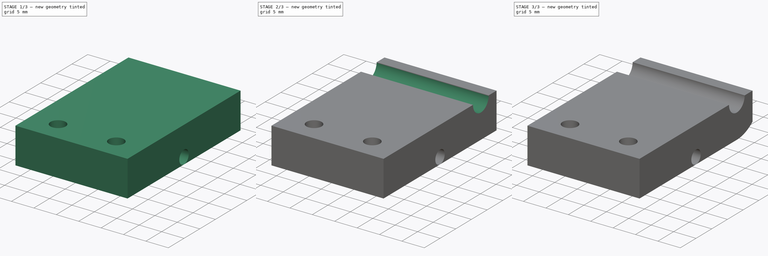
[diagram: build sequence overview — one tinted view per stage of 3, left to right]
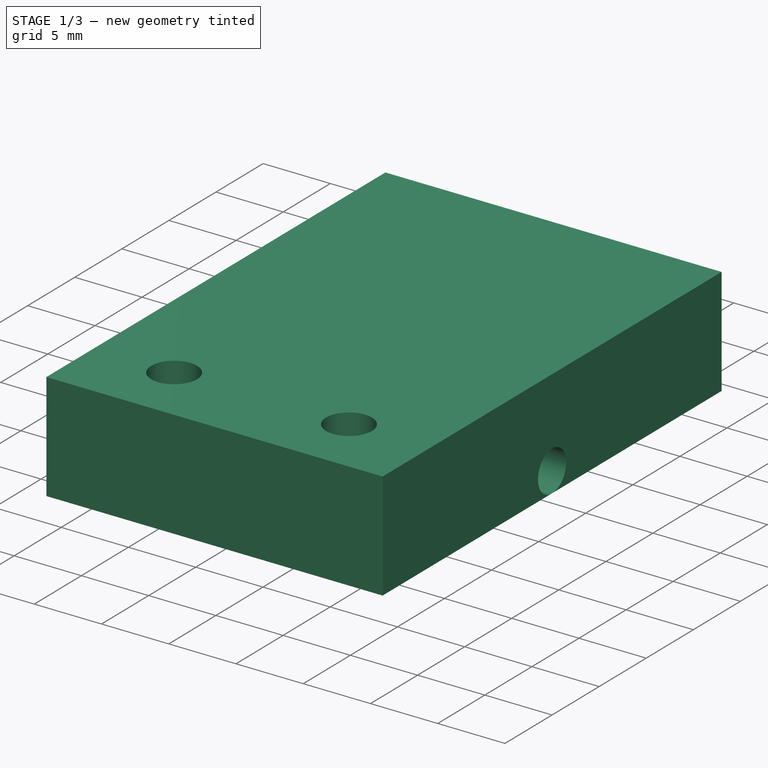
[diagram: stage 1 of 3 — iso view after this stage's code; geometry added in this stage tinted green]
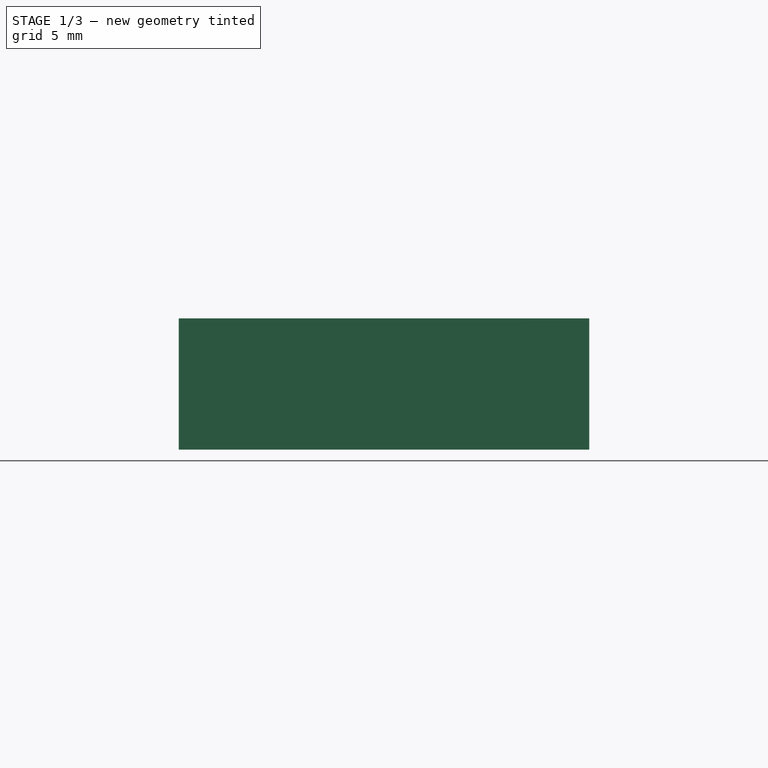
[diagram: stage 1 of 3 — front view after this stage's code; geometry added in this stage tinted green]
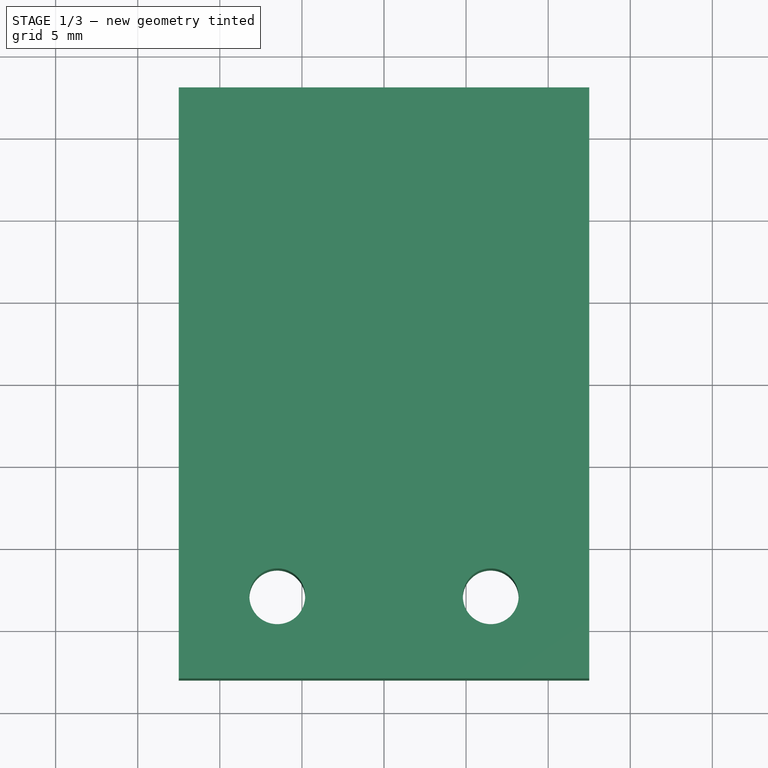
[diagram: stage 1 of 3 — top view after this stage's code; geometry added in this stage tinted green]
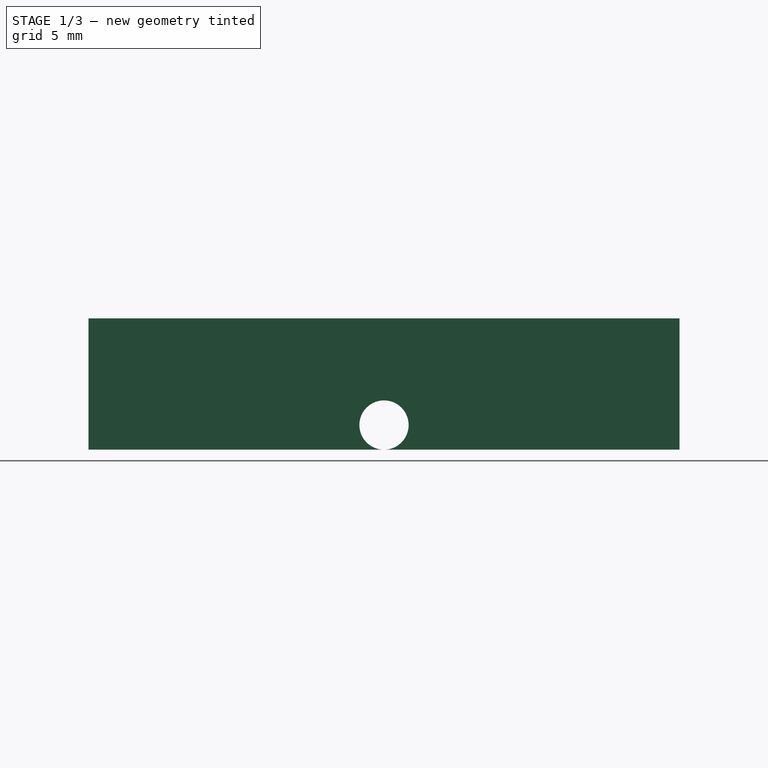
[diagram: stage 1 of 3 — right view after this stage's code; geometry added in this stage tinted green]
FCSTD DOCUMENT  (FreeCAD 0.18R13661 (Git))
Label: Idler_623zz+M3
License: All rights reserved
LicenseURL: http://en.wikipedia.org/wiki/All_rights_reserved
objects: Sketcher::SketchObject×6, PartDesign::Pocket×5, PartDesign::Plane×2, PartDesign::Chamfer×2, PartDesign::Pad×1, PartDesign::Body×1
note: 23 computed .brp shape members not serialized (recipe doc carries the construction recipe); baked Part::Feature solids carry a one-line shape summary decoded from their .brp

FEATURE [Sketcher::SketchObject] Sketch  label="BaseSketch"
  MapMode = 5
  Support = -> [XY_Plane]
  sketch-geometry (12):
    g0: Circle [constr] CenterX=0 CenterY=0 CenterZ=0 NormalX=0 NormalY=0 NormalZ=1 AngleXU=0 Radius=21.9146
    g1: LineSegment StartX=-12.5 StartY=18 StartZ=0 EndX=-12.5 EndY=0 EndZ=0
    g2: LineSegment StartX=-12.5 StartY=0 StartZ=0 EndX=-12.5 EndY=-18 EndZ=0
    g3: LineSegment StartX=12.5 StartY=-18 StartZ=0 EndX=12.5 EndY=0 EndZ=0
    g4: LineSegment StartX=12.5 StartY=0 StartZ=0 EndX=12.5 EndY=18 EndZ=0
    g5: LineSegment StartX=-12.5 StartY=18 StartZ=0 EndX=0 EndY=18 EndZ=0
    g6: LineSegment StartX=0 StartY=18 StartZ=0 EndX=12.5 EndY=18 EndZ=0
    g7: LineSegment StartX=12.5 StartY=-18 StartZ=0 EndX=0 EndY=-18 EndZ=0
    g8: LineSegment StartX=0 StartY=-18 StartZ=0 EndX=-12.5 EndY=-18 EndZ=0
    g9: Circle [constr] CenterX=0 CenterY=0 CenterZ=0 NormalX=0 NormalY=0 NormalZ=1 AngleXU=0 Radius=14.5344
    g10: Circle CenterX=6.5 CenterY=-13 CenterZ=0 NormalX=0 NormalY=0 NormalZ=1 AngleXU=0 Radius=1.7
    g11: Circle CenterX=-6.5 CenterY=-13 CenterZ=0 NormalX=0 NormalY=0 NormalZ=1 AngleXU=0 Radius=1.7
  constraints (34):
    c: Coincident(g0,g-1)
    c: PointOnObject(g1,g0)
    c: PointOnObject(g1,g-1)
    c: Coincident(g2,g1)
    c: PointOnObject(g2,g0)
    c: PointOnObject(g3,g0)
    c: PointOnObject(g3,g-1)
    c: Coincident(g4,g3)
    c: PointOnObject(g4,g0)
    c: Coincident(g5,g1)
    c: PointOnObject(g5,g-2)
    c: Coincident(g6,g5)
    c: Coincident(g6,g4)
    c: Coincident(g7,g3)
    c: PointOnObject(g7,g-2)
    c: Coincident(g8,g7)
    c: Coincident(g8,g2)
    c: Vertical(g1)
    c: Vertical(g2)
    c: Horizontal(g5)
    c: Horizontal(g6)
    c: Vertical(g4)
    c: Vertical(g3)
    c: Horizontal(g7)
    c: Distance(g1,g2) = 36
    c: Distance(g1,g4) = 25
    c: Coincident(g9,g-1)
    c: PointOnObject(g10,g9)
    c: PointOnObject(g11,g9)
    c: Equal(g10,g11)
    c: Symmetric(g10,g11,g-2)
    c: DistanceY(g3,g10) = 5
    c: DistanceX(g10,g3) = 6
    c: Radius(g10) = 1.7
FEATURE [PartDesign::Pad] Pad  label="BasePad"
  Length = 8
  Length2 = 100
  Profile = -> Sketch
  Type = 0
FEATURE [Sketcher::SketchObject] Sketch001  label="BearingClampSketch"
  MapMode = 5
  Placement = pos=(0,0,0) rot=(0.57735,0.57735,0.57735;2.0944rad)
  Support = -> [YZ_Plane]
  sketch-geometry (1):
    g0: Circle CenterX=0 CenterY=1.5 CenterZ=0 NormalX=0 NormalY=0 NormalZ=1 AngleXU=0 Radius=1.5
  constraints (3):
    c: PointOnObject(g0,g-2)
    c: Distance(g-1,g0) = 1.5
    c: Radius(g0) = 1.5
FEATURE [PartDesign::Pocket] Pocket  label="BearingClampPocket"
  BaseFeature = -> Pad
  Length = 5
  Length2 = 100
  Midplane = true
  Profile = -> Sketch001
  Type = 1
FEATURE [Sketcher::SketchObject] Sketch002  label="BearingNotchSketch"
  ExternalGeometry = -> [Sketch001]
  MapMode = 5
  Placement = pos=(0,0,0) rot=(0.57735,0.57735,0.57735;2.0944rad)
  Support = -> [YZ_Plane]
  sketch-geometry (1):
    g0: Circle CenterX=0 CenterY=1.5 CenterZ=0 NormalX=0 NormalY=0 NormalZ=1 AngleXU=0 Radius=3
  constraints (2):
    c: Coincident(g0,g-3)
    c: Radius(g0) = 3
FEATURE [PartDesign::Pocket] Pocket001  label="BearingNotchPocket"
  BaseFeature = -> Pocket
  Length = 4.5
  Length2 = 100
  Midplane = true
  Profile = -> Sketch002
  Type = 0
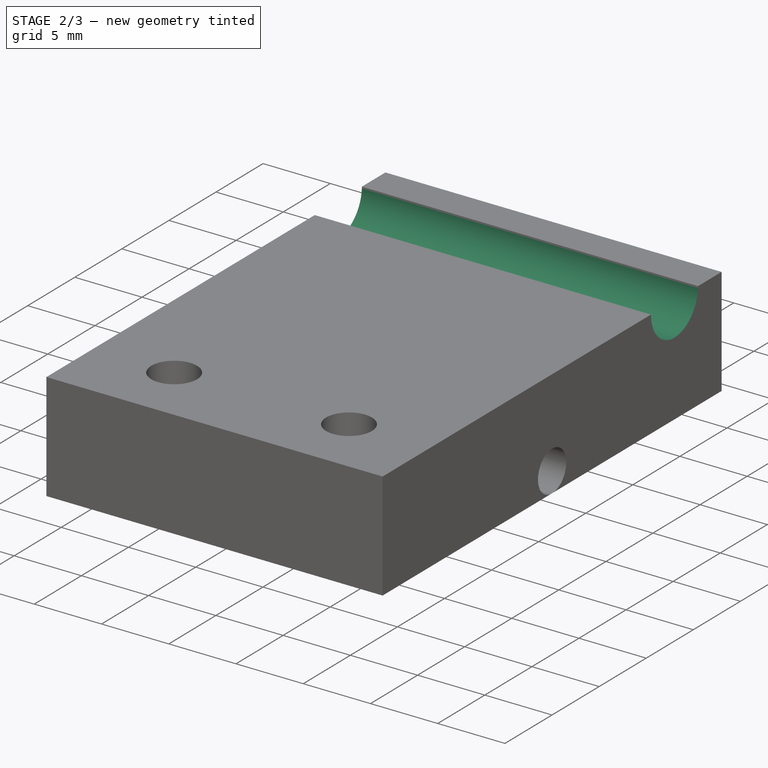
[diagram: stage 2 of 3 — iso view after this stage's code; geometry added in this stage tinted green]
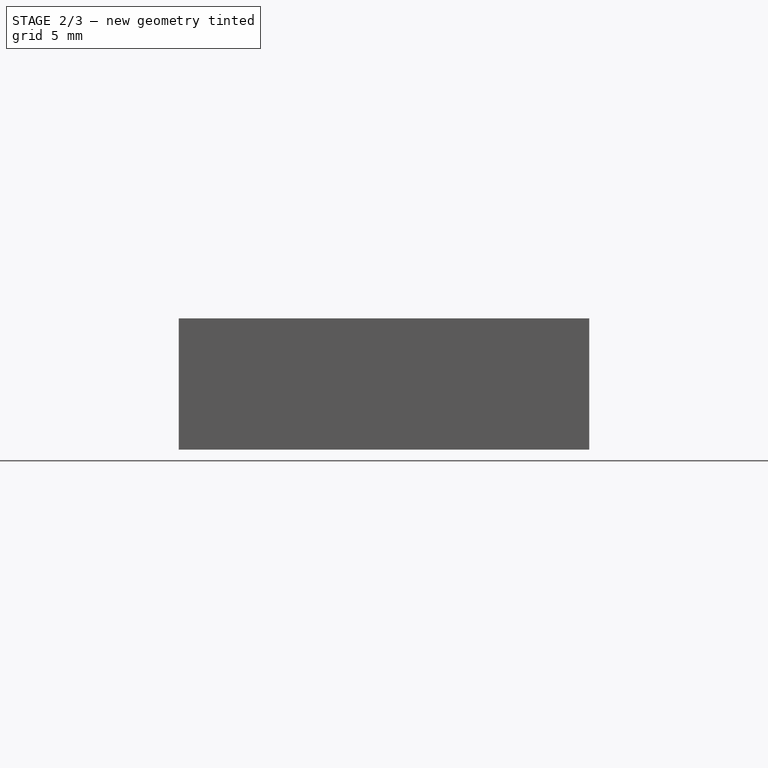
[diagram: stage 2 of 3 — front view after this stage's code; geometry added in this stage tinted green]
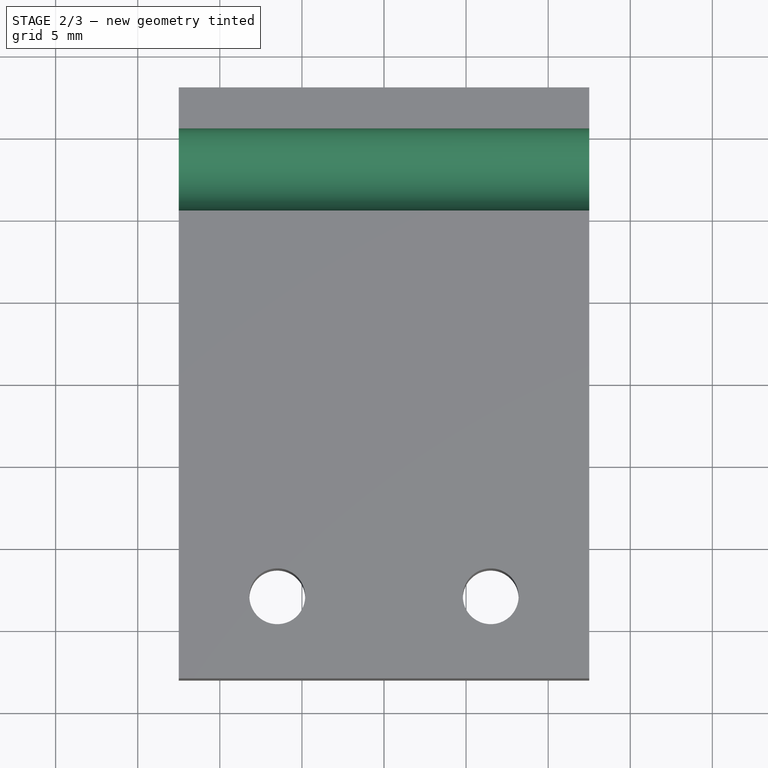
[diagram: stage 2 of 3 — top view after this stage's code; geometry added in this stage tinted green]
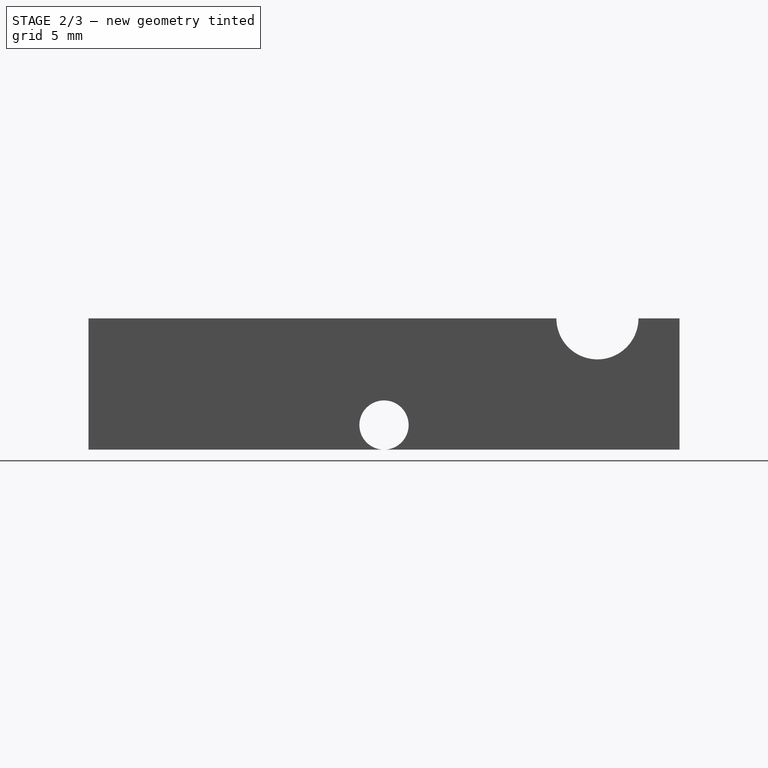
[diagram: stage 2 of 3 — right view after this stage's code; geometry added in this stage tinted green]
FEATURE [Sketcher::SketchObject] Sketch003  label="BearingCutSketch"
  ExternalGeometry = -> [Sketch001]
  MapMode = 5
  Placement = pos=(0,0,0) rot=(0.57735,0.57735,0.57735;2.0944rad)
  Support = -> [YZ_Plane]
  sketch-geometry (2):
    g0: Circle CenterX=0 CenterY=1.5 CenterZ=0 NormalX=0 NormalY=0 NormalZ=1 AngleXU=0 Radius=3
    g1: Circle CenterX=0 CenterY=1.5 CenterZ=0 NormalX=0 NormalY=0 NormalZ=1 AngleXU=0 Radius=6
  constraints (4):
    c: Coincident(g0,g-3)
    c: Radius(g0) = 3
    c: Coincident(g1,g0)
    c: Radius(g1) = 6
FEATURE [PartDesign::Pocket] Pocket002  label="BearingCutPocket"
  BaseFeature = -> Pocket001
  Length = 8
  Length2 = 100
  Midplane = true
  Profile = -> Sketch003
  Type = 0
FEATURE [PartDesign::Plane] DatumPlane  label="IdlerClampPlane"
  AttachmentOffset = pos=(5,0,0) rot=(0,0,1;0rad)
  MapMode = 6
  Placement = pos=(-12.5,13,8) rot=(0.57735,-0.57735,-0.57735;2.0944rad)
  Support = -> [Pad]
FEATURE [Sketcher::SketchObject] Sketch004  label="IdlerClampSketch"
  MapMode = 5
  Placement = pos=(-12.5,13,8) rot=(0.57735,-0.57735,-0.57735;2.0944rad)
  Support = -> [DatumPlane]
  sketch-geometry (1):
    g0: Circle CenterX=0 CenterY=0 CenterZ=0 NormalX=0 NormalY=0 NormalZ=1 AngleXU=0 Radius=2.5
  constraints (2):
    c: Coincident(g0,g-1)
    c: Radius(g0) = 2.5
FEATURE [PartDesign::Pocket] Pocket003  label="IdlerClampPocket"
  BaseFeature = -> Pocket002
  Length = 5
  Length2 = 100
  Profile = -> Sketch004
  Type = 1
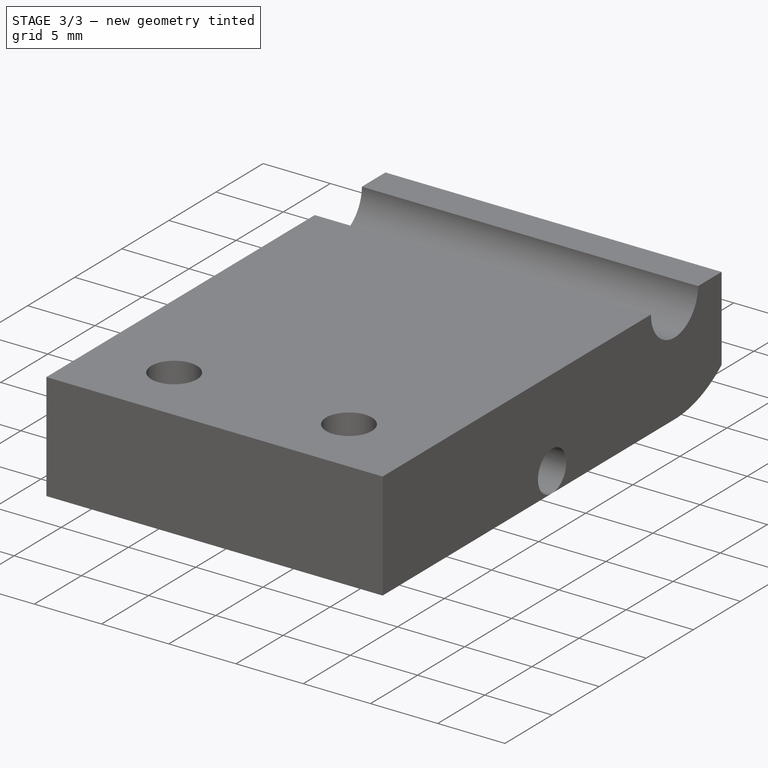
[diagram: stage 3 of 3 — iso view after this stage's code; geometry added in this stage tinted green]
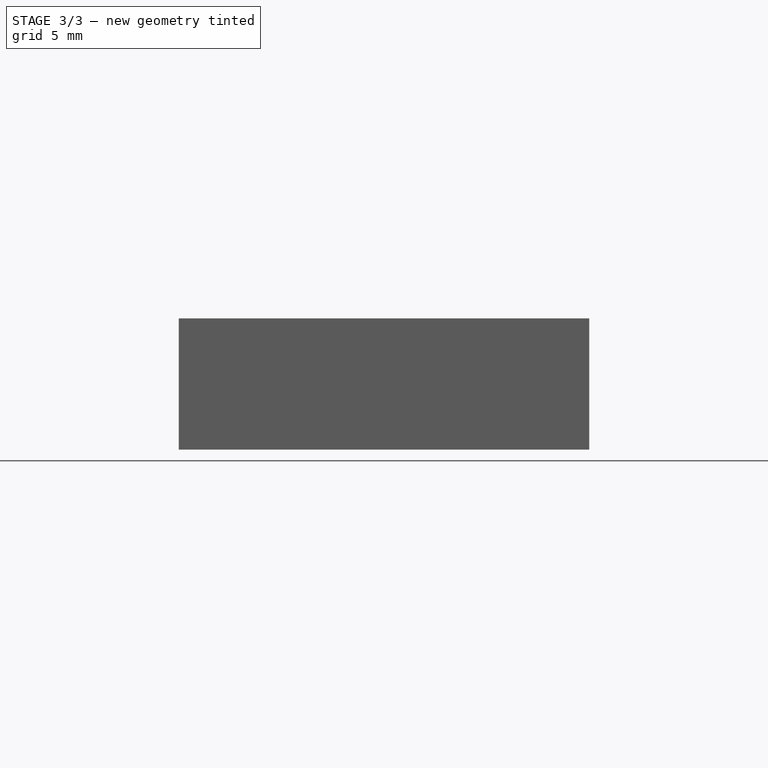
[diagram: stage 3 of 3 — front view after this stage's code; geometry added in this stage tinted green]
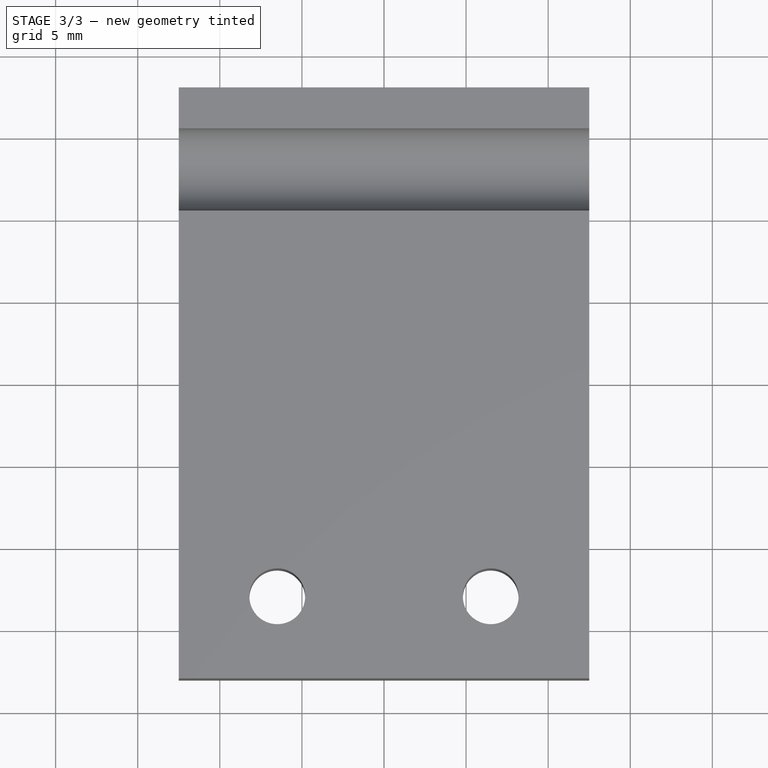
[diagram: stage 3 of 3 — top view after this stage's code; geometry added in this stage tinted green]
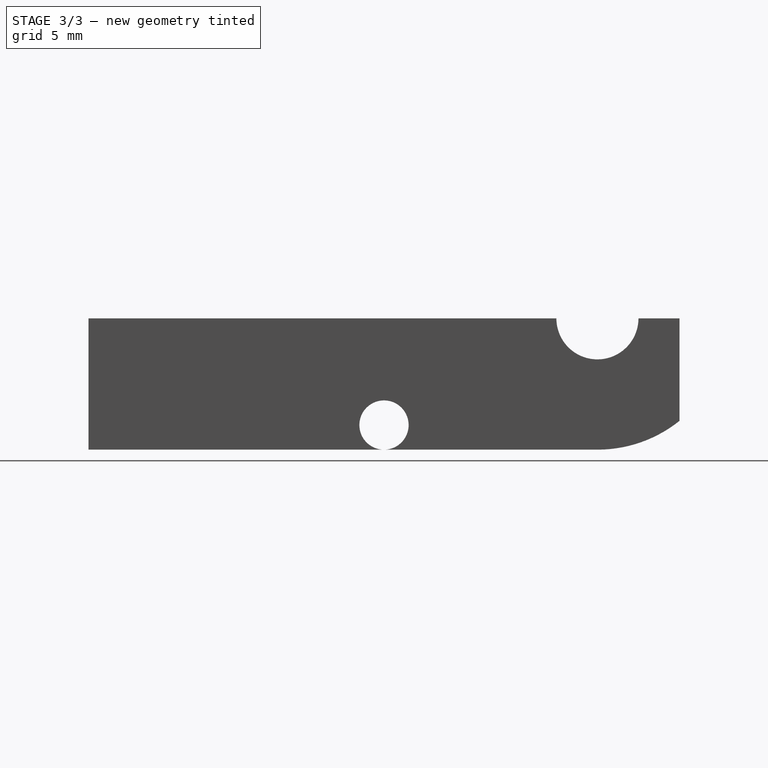
[diagram: stage 3 of 3 — right view after this stage's code; geometry added in this stage tinted green]
FEATURE [PartDesign::Plane] DatumPlane001  label="IdlerChamferPlane"
  AttachmentOffset = pos=(5,0,0) rot=(0,0,1;0rad)
  MapMode = 6
  Placement = pos=(-12.5,13,0) rot=(0.57735,-0.57735,-0.57735;2.0944rad)
  Support = -> [Pocket003]
FEATURE [Sketcher::SketchObject] Sketch005  label="IdlerChamferSketch"
  ExternalGeometry = -> [Sketch004]
  MapMode = 5
  Placement = pos=(-12.5,13,0) rot=(0.57735,-0.57735,-0.57735;2.0944rad)
  Support = -> [DatumPlane001]
  sketch-geometry (4):
    g0: ArcOfCircle CenterX=0 CenterY=8 CenterZ=0 NormalX=0 NormalY=0 NormalZ=1 AngleXU=0 Radius=8 StartAngle=3.14159 EndAngle=4.71239
    g1: LineSegment StartX=0 StartY=0 StartZ=0 EndX=4.209e-08 EndY=-10 EndZ=0
    g2: LineSegment StartX=-8 StartY=8 StartZ=0 EndX=-18 EndY=8 EndZ=0
    g3: ArcOfCircle CenterX=0 CenterY=8 CenterZ=0 NormalX=0 NormalY=0 NormalZ=1 AngleXU=0 Radius=18 StartAngle=3.14159 EndAngle=4.71239
  constraints (11):
    c: Coincident(g0,g-3)
    c: Coincident(g0,g-1)
    c: Angle(g0) = 1.5708
    c: Coincident(g1,g-1)
    c: Distance(g1) = 10
    c: Coincident(g2,g0)
    c: Horizontal(g2)
    c: Distance(g2) = 10
    c: Coincident(g3,g0)
    c: Coincident(g3,g1)
    c: Coincident(g3,g2)
FEATURE [PartDesign::Pocket] Pocket004  label="IdlerChamferPocket"
  BaseFeature = -> Pocket003
  Length = 5
  Length2 = 100
  Profile = -> Sketch005
  Type = 1
FEATURE [PartDesign::Chamfer] Chamfer  label="BearingNotchChamfer"
  Base = -> Pocket004 [Edge62,Edge56]
  BaseFeature = -> Pocket004
  Size = 1
FEATURE [PartDesign::Chamfer] Chamfer001  label="BearingCutChamfer"
  Base = -> Chamfer [Edge6,Edge36]
  BaseFeature = -> Chamfer
  Size = 1.5
FEATURE [PartDesign::Body] Body  label="IdlerBody"
  Group = -> [Sketch,Pad,Sketch001,Pocket,Sketch002,Pocket001,Sketch003,Pocket002,Sketch004,Pocket003,DatumPlane,DatumPlane001,Sketch005,Pocket004,Chamfer,Chamfer001]
  Origin = -> Origin
  Tip = -> Chamfer001
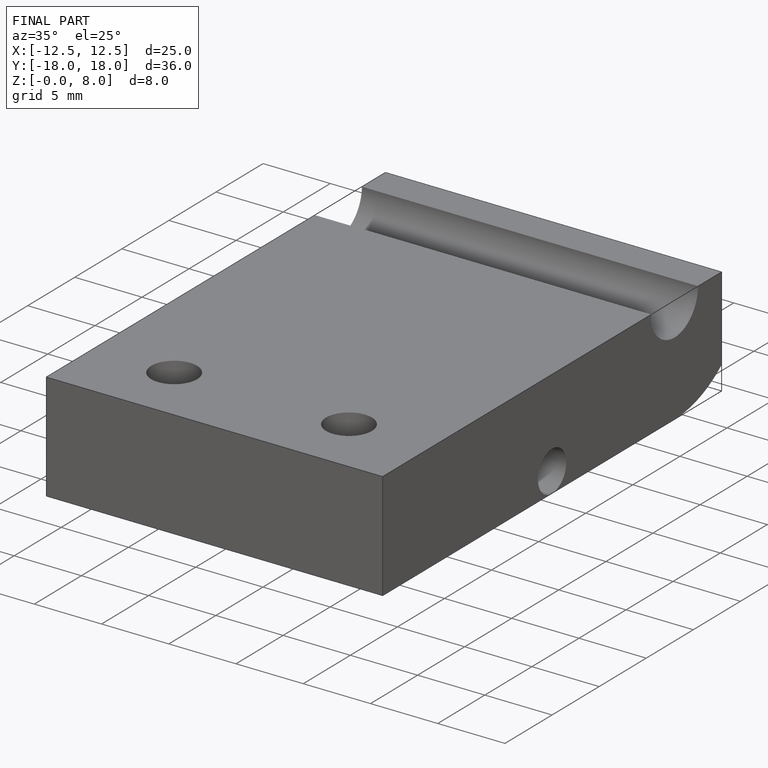
[diagram: finished part — iso view with bounding-box wireframe]
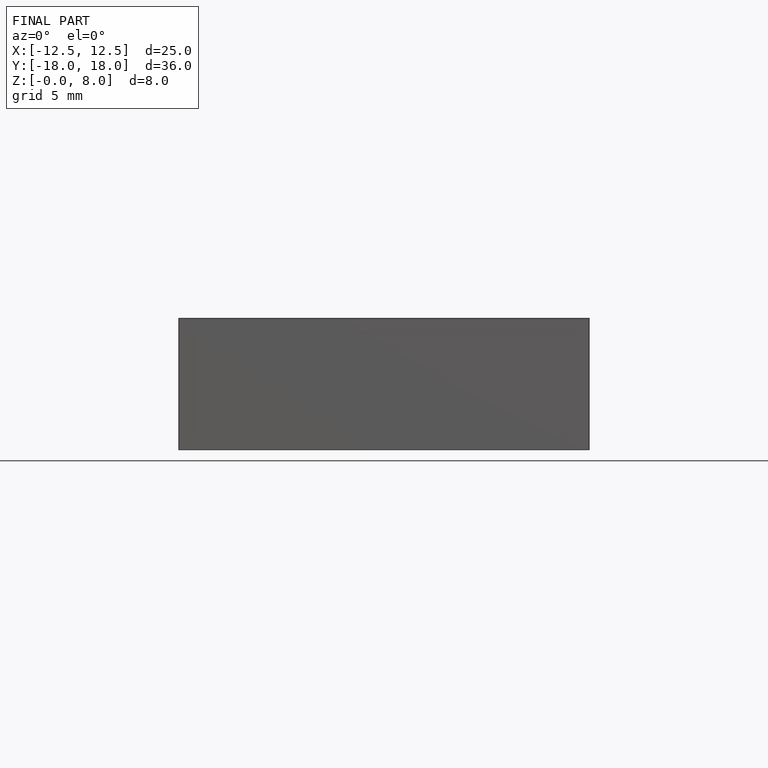
[diagram: finished part — front view with bounding-box wireframe]
